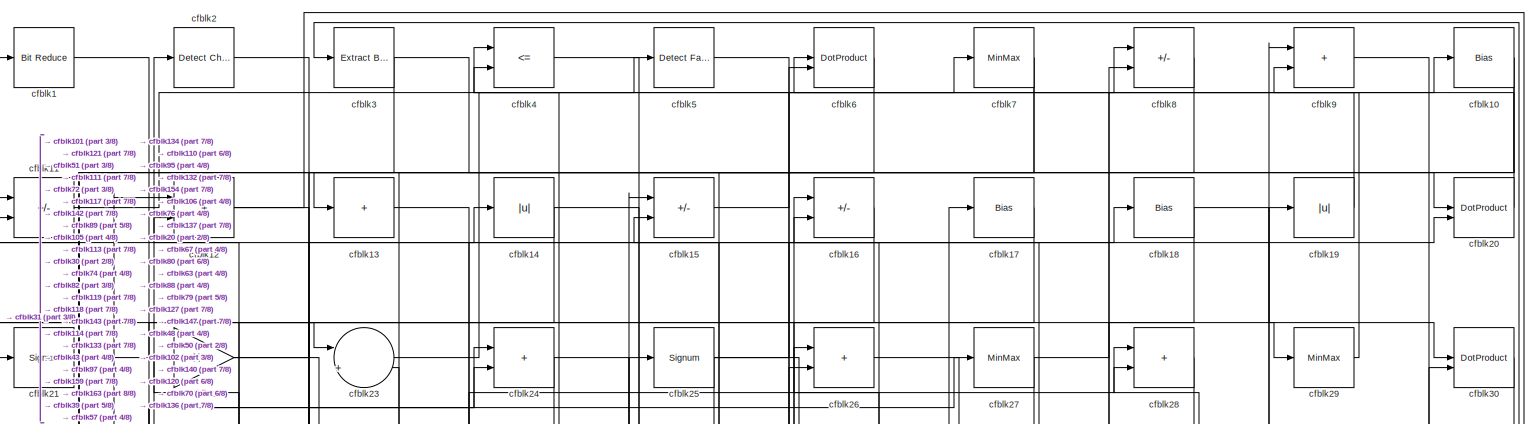
[diagram: root canvas - part 1/8, full width, top band]
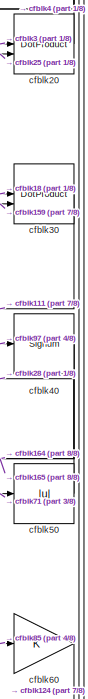
[diagram: root canvas - part 2/8, top right region]
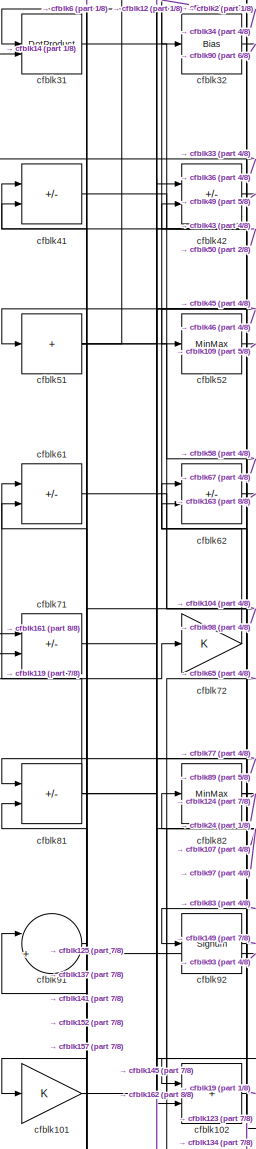
[diagram: root canvas - part 3/8, middle left region]
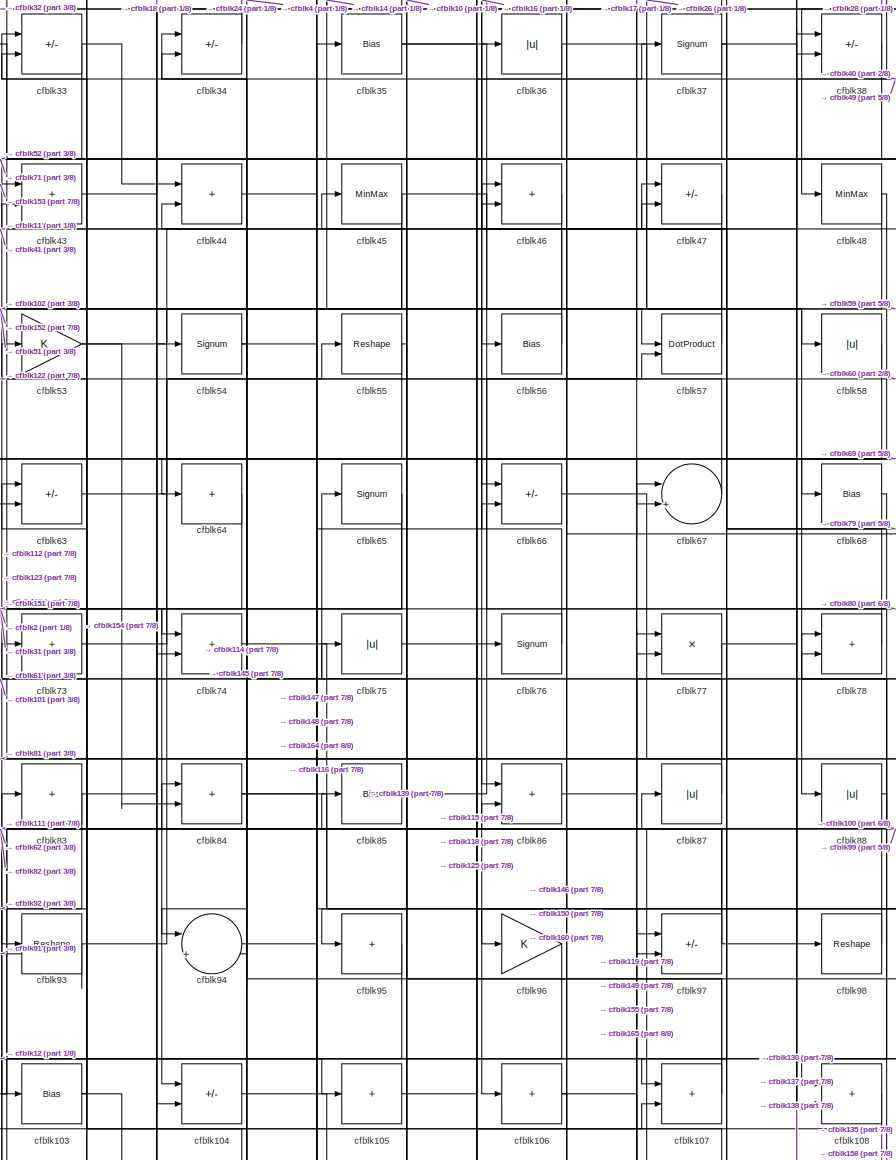
[diagram: root canvas - part 4/8, central region]
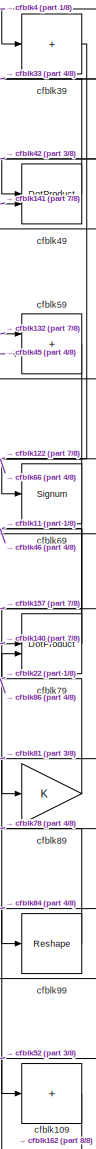
[diagram: root canvas - part 5/8, middle right region]
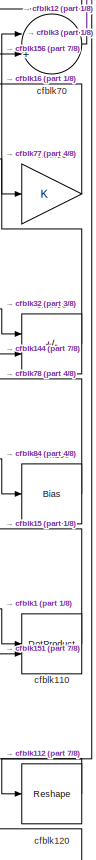
[diagram: root canvas - part 6/8, middle right region]
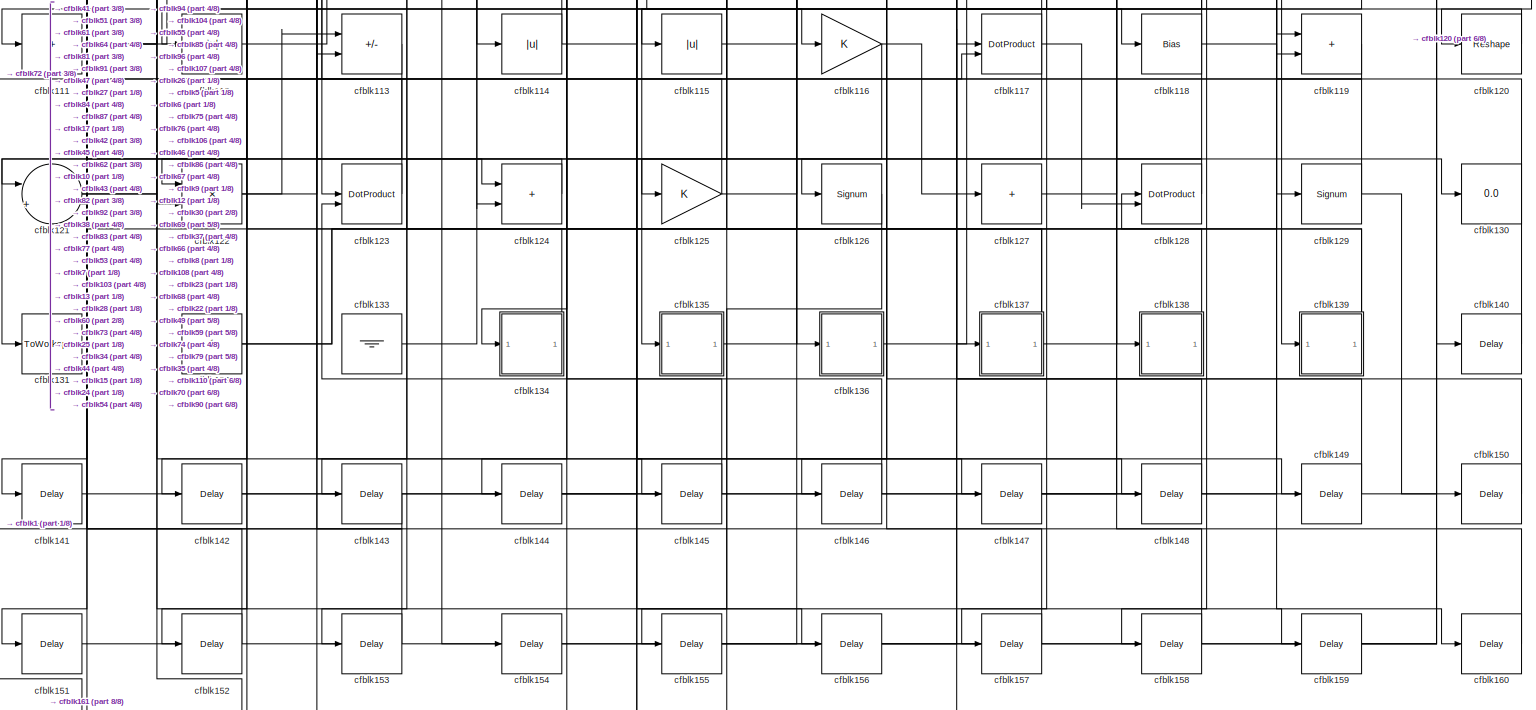
[diagram: root canvas - part 7/8, full width, bottom band]
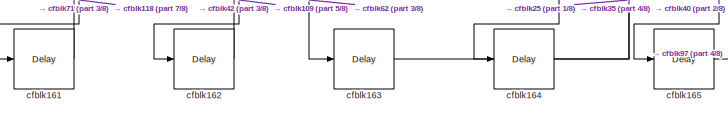
[diagram: root canvas - part 8/8, bottom left region]
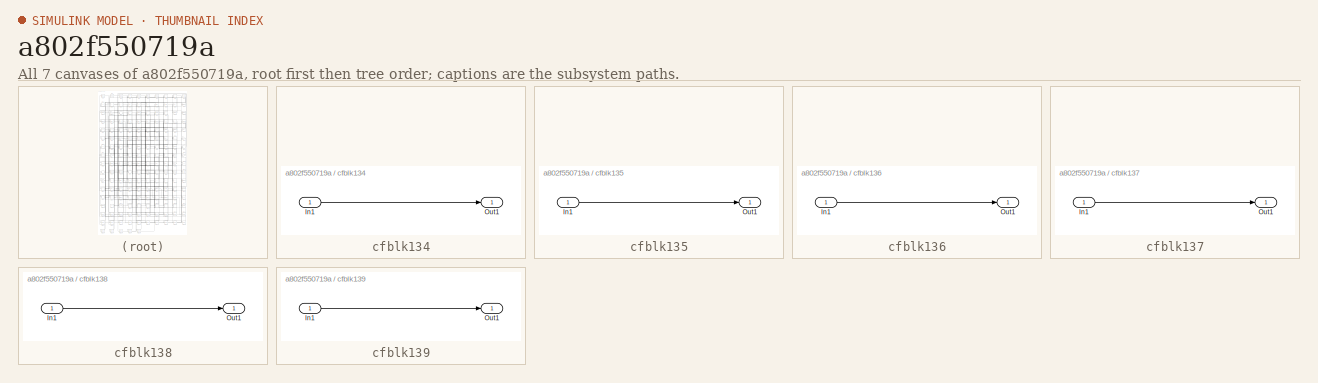
[diagram: thumbnail index - all 7 canvases of the model, root first then tree order]
MODEL slx_a802f550719a
KIND model
CONFIG AbsTol = auto
CONFIG EnableMultiTasking = off
CONFIG FixedStep = auto
CONFIG MaxStep = auto
CONFIG MinStep = auto
CONFIG RelTol = 1e-3
CONFIG SampleTimeConstraint = Unconstrained
CONFIG SolverName = VariableStepAuto
CONFIG StartTime = 0.0
CONFIG StopTime = 10.0
BLOCK [Reference] cfblk1  REF=hdlsllib/Logic and Bit
Operations/Bit Reduce
  SourceBlock = hdlsllib/Logic and Bit\nOperations/Bit Reduce
  SourceType = Bit Reduce
BLOCK [Bias] cfblk10
  Bias = 0.0
  SaturateOnIntegerOverflow = off
BLOCK [Bias] cfblk100
  Bias = 0.0
  SaturateOnIntegerOverflow = off
BLOCK [Gain] cfblk101
BLOCK [Sum] cfblk102
  IconShape = rectangular
BLOCK [Bias] cfblk103
  Bias = 0.0
  SaturateOnIntegerOverflow = off
BLOCK [Sum] cfblk104
  IconShape = rectangular
  Inputs = +-
BLOCK [Sum] cfblk105
  IconShape = rectangular
  Inputs = +
BLOCK [Sum] cfblk106
  IconShape = rectangular
  Inputs = +
BLOCK [Sum] cfblk107
  IconShape = rectangular
BLOCK [Sum] cfblk108
  IconShape = rectangular
BLOCK [Sum] cfblk109
  IconShape = rectangular
  Inputs = +
BLOCK [Sum] cfblk11
  IconShape = rectangular
  Inputs = +-
BLOCK [DotProduct] cfblk110
  OutDataTypeStr = Inherit: Inherit via internal rule
BLOCK [Sum] cfblk111
  IconShape = rectangular
  Inputs = +
BLOCK [Abs] cfblk112
  SaturateOnIntegerOverflow = off
BLOCK [Sum] cfblk113
  IconShape = rectangular
  Inputs = +-
BLOCK [Abs] cfblk114
  SaturateOnIntegerOverflow = off
BLOCK [Abs] cfblk115
  SaturateOnIntegerOverflow = off
BLOCK [Gain] cfblk116
BLOCK [DotProduct] cfblk117
  OutDataTypeStr = Inherit: Inherit via internal rule
BLOCK [Bias] cfblk118
  Bias = 0.0
  SaturateOnIntegerOverflow = off
BLOCK [Sum] cfblk119
  IconShape = rectangular
BLOCK [Sum] cfblk12
  IconShape = rectangular
BLOCK [Reshape] cfblk120
BLOCK [Sum] cfblk121
  Inputs = |++
BLOCK [Product] cfblk122
  Inputs = */
  RndMeth = Zero
  SaturateOnIntegerOverflow = on
BLOCK [DotProduct] cfblk123
  OutDataTypeStr = Inherit: Inherit via internal rule
BLOCK [Sum] cfblk124
  IconShape = rectangular
BLOCK [Gain] cfblk125
BLOCK [Signum] cfblk126
BLOCK [Sum] cfblk127
  IconShape = rectangular
  Inputs = +
BLOCK [DotProduct] cfblk128
  OutDataTypeStr = Inherit: Inherit via internal rule
BLOCK [Signum] cfblk129
BLOCK [Sum] cfblk13
  IconShape = rectangular
  Inputs = +
BLOCK [Display] cfblk130
  Decimation = 1
BLOCK [ToWorkspace] cfblk131
  MaxDataPoints = inf
  SampleTime = -1
  SaveFormat = Timeseries
  VariableName = simout
BLOCK [Constant] cfblk132
  SampleTime = -1
BLOCK [Ground] cfblk133
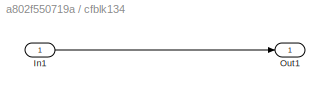
BLOCK [SubSystem] cfblk134
  LibrarySourceBlock = hdlsllib/Ports &\nSubsystems/Subsystem
BLOCK [Inport] cfblk134/In1
BLOCK [Outport] cfblk134/Out1
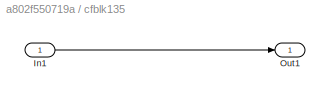
BLOCK [SubSystem] cfblk135
  LibrarySourceBlock = hdlsllib/Ports &\nSubsystems/Subsystem
BLOCK [Inport] cfblk135/In1
BLOCK [Outport] cfblk135/Out1
BLOCK [SubSystem] cfblk136
  LibrarySourceBlock = hdlsllib/Ports &\nSubsystems/Subsystem
BLOCK [Inport] cfblk136/In1
BLOCK [Outport] cfblk136/Out1
BLOCK [SubSystem] cfblk137
  LibrarySourceBlock = hdlsllib/Ports &\nSubsystems/Subsystem
BLOCK [Inport] cfblk137/In1
BLOCK [Outport] cfblk137/Out1
BLOCK [SubSystem] cfblk138
  LibrarySourceBlock = hdlsllib/Ports &\nSubsystems/Subsystem
BLOCK [Inport] cfblk138/In1
BLOCK [Outport] cfblk138/Out1
BLOCK [SubSystem] cfblk139
  LibrarySourceBlock = hdlsllib/Ports &\nSubsystems/Subsystem
BLOCK [Inport] cfblk139/In1
BLOCK [Outport] cfblk139/Out1
BLOCK [Abs] cfblk14
  SaturateOnIntegerOverflow = off
BLOCK [Delay] cfblk140
  InputPortMap = u0
  SampleTime = 1
BLOCK [Delay] cfblk141
  InputPortMap = u0
  SampleTime = 1
BLOCK [Delay] cfblk142
  InputPortMap = u0
  SampleTime = 1
BLOCK [Delay] cfblk143
  InputPortMap = u0
  SampleTime = 1
BLOCK [Delay] cfblk144
  InputPortMap = u0
  SampleTime = 1
BLOCK [Delay] cfblk145
  InputPortMap = u0
  SampleTime = 1
BLOCK [Delay] cfblk146
  InputPortMap = u0
  SampleTime = 1
BLOCK [Delay] cfblk147
  InputPortMap = u0
  SampleTime = 1
BLOCK [Delay] cfblk148
  InputPortMap = u0
  SampleTime = 1
BLOCK [Delay] cfblk149
  InputPortMap = u0
  SampleTime = 1
BLOCK [Sum] cfblk15
  IconShape = rectangular
  Inputs = +-
BLOCK [Delay] cfblk150
  InputPortMap = u0
  SampleTime = 1
BLOCK [Delay] cfblk151
  InputPortMap = u0
  SampleTime = 1
BLOCK [Delay] cfblk152
  InputPortMap = u0
  SampleTime = 1
BLOCK [Delay] cfblk153
  InputPortMap = u0
  SampleTime = 1
BLOCK [Delay] cfblk154
  InputPortMap = u0
  SampleTime = 1
BLOCK [Delay] cfblk155
  InputPortMap = u0
  SampleTime = 1
BLOCK [Delay] cfblk156
  InputPortMap = u0
  SampleTime = 1
BLOCK [Delay] cfblk157
  InputPortMap = u0
  SampleTime = 1
BLOCK [Delay] cfblk158
  InputPortMap = u0
  SampleTime = 1
BLOCK [Delay] cfblk159
  InputPortMap = u0
  SampleTime = 1
BLOCK [Sum] cfblk16
  IconShape = rectangular
  Inputs = +-
BLOCK [Delay] cfblk160
  InputPortMap = u0
  SampleTime = 1
BLOCK [Delay] cfblk161
  InputPortMap = u0
  SampleTime = 1
BLOCK [Delay] cfblk162
  InputPortMap = u0
  SampleTime = 1
BLOCK [Delay] cfblk163
  InputPortMap = u0
  SampleTime = 1
BLOCK [Delay] cfblk164
  InputPortMap = u0
  SampleTime = 1
BLOCK [Delay] cfblk165
  InputPortMap = u0
  SampleTime = 1
BLOCK [Bias] cfblk17
  Bias = 0.0
  SaturateOnIntegerOverflow = off
BLOCK [Bias] cfblk18
  Bias = 0.0
  SaturateOnIntegerOverflow = off
BLOCK [Abs] cfblk19
  SaturateOnIntegerOverflow = off
BLOCK [Reference] cfblk2  REF=simulink/Logic and Bit
Operations/Detect
Change
  LibrarySourceBlock = hdlsllib/Logic and Bit\nOperations/Detect\nChange
  SourceBlock = simulink/Logic and Bit\nOperations/Detect\nChange
  SourceType = Detect Change
BLOCK [DotProduct] cfblk20
  OutDataTypeStr = Inherit: Inherit via internal rule
BLOCK [Signum] cfblk21
BLOCK [Gain] cfblk22
BLOCK [Sum] cfblk23
  Inputs = |++
BLOCK [Sum] cfblk24
  IconShape = rectangular
BLOCK [Signum] cfblk25
BLOCK [Sum] cfblk26
  IconShape = rectangular
BLOCK [MinMax] cfblk27
BLOCK [Sum] cfblk28
  IconShape = rectangular
BLOCK [MinMax] cfblk29
BLOCK [Reference] cfblk3  REF=simulink/Logic and Bit
Operations/Extract Bits
  LibrarySourceBlock = hdlsllib/Logic and Bit\nOperations/Extract Bits
  SourceBlock = simulink/Logic and Bit\nOperations/Extract Bits
  SourceType = Extract Bits
BLOCK [DotProduct] cfblk30
  OutDataTypeStr = Inherit: Inherit via internal rule
BLOCK [DotProduct] cfblk31
  OutDataTypeStr = Inherit: Inherit via internal rule
BLOCK [Bias] cfblk32
  Bias = 0.0
  SaturateOnIntegerOverflow = off
BLOCK [Sum] cfblk33
  IconShape = rectangular
  Inputs = +-
BLOCK [Sum] cfblk34
  IconShape = rectangular
  Inputs = +-
BLOCK [Bias] cfblk35
  Bias = 0.0
  SaturateOnIntegerOverflow = off
BLOCK [Abs] cfblk36
  SaturateOnIntegerOverflow = off
BLOCK [Signum] cfblk37
BLOCK [Sum] cfblk38
  IconShape = rectangular
  Inputs = +-
BLOCK [Sum] cfblk39
  IconShape = rectangular
  Inputs = +
BLOCK [RelationalOperator] cfblk4
  InputSameDT = off
  Operator = <=
  OutDataTypeStr = boolean
BLOCK [Signum] cfblk40
BLOCK [Sum] cfblk41
  IconShape = rectangular
  Inputs = +-
BLOCK [Sum] cfblk42
  IconShape = rectangular
  Inputs = +-
BLOCK [Sum] cfblk43
  IconShape = rectangular
BLOCK [Sum] cfblk44
  IconShape = rectangular
BLOCK [MinMax] cfblk45
BLOCK [Sum] cfblk46
  IconShape = rectangular
BLOCK [Sum] cfblk47
  IconShape = rectangular
  Inputs = +-
BLOCK [MinMax] cfblk48
BLOCK [DotProduct] cfblk49
  OutDataTypeStr = Inherit: Inherit via internal rule
BLOCK [Reference] cfblk5  REF=hdlsllib/Logic and Bit
Operations/Detect Fall
Negative
  SourceBlock = hdlsllib/Logic and Bit\nOperations/Detect Fall\nNegative
  SourceType = Detect Fall Negative
BLOCK [Abs] cfblk50
  SaturateOnIntegerOverflow = off
BLOCK [Sum] cfblk51
  IconShape = rectangular
  Inputs = +
BLOCK [MinMax] cfblk52
BLOCK [Gain] cfblk53
BLOCK [Signum] cfblk54
BLOCK [Reshape] cfblk55
BLOCK [Bias] cfblk56
  Bias = 0.0
  SaturateOnIntegerOverflow = off
BLOCK [DotProduct] cfblk57
  OutDataTypeStr = Inherit: Inherit via internal rule
BLOCK [Abs] cfblk58
  SaturateOnIntegerOverflow = off
BLOCK [Sum] cfblk59
  IconShape = rectangular
BLOCK [DotProduct] cfblk6
  OutDataTypeStr = Inherit: Inherit via internal rule
BLOCK [Gain] cfblk60
BLOCK [Sum] cfblk61
  IconShape = rectangular
  Inputs = +-
BLOCK [Sum] cfblk62
  IconShape = rectangular
  Inputs = +-
BLOCK [Sum] cfblk63
  IconShape = rectangular
  Inputs = +-
BLOCK [Sum] cfblk64
  IconShape = rectangular
  Inputs = +
BLOCK [Signum] cfblk65
BLOCK [Sum] cfblk66
  IconShape = rectangular
  Inputs = +-
BLOCK [Sum] cfblk67
  Inputs = |++
BLOCK [Bias] cfblk68
  Bias = 0.0
  SaturateOnIntegerOverflow = off
BLOCK [Signum] cfblk69
BLOCK [MinMax] cfblk7
BLOCK [Sum] cfblk70
  Inputs = |++
BLOCK [Sum] cfblk71
  IconShape = rectangular
  Inputs = +-
BLOCK [Gain] cfblk72
BLOCK [Sum] cfblk73
  IconShape = rectangular
  Inputs = +
BLOCK [Sum] cfblk74
  IconShape = rectangular
BLOCK [Abs] cfblk75
  SaturateOnIntegerOverflow = off
BLOCK [Signum] cfblk76
BLOCK [Product] cfblk77
  Inputs = */
  RndMeth = Zero
  SaturateOnIntegerOverflow = on
BLOCK [Sum] cfblk78
  IconShape = rectangular
BLOCK [DotProduct] cfblk79
  OutDataTypeStr = Inherit: Inherit via internal rule
BLOCK [Sum] cfblk8
  IconShape = rectangular
  Inputs = +-
BLOCK [Gain] cfblk80
BLOCK [Sum] cfblk81
  IconShape = rectangular
  Inputs = +-
BLOCK [MinMax] cfblk82
BLOCK [Sum] cfblk83
  IconShape = rectangular
  Inputs = +
BLOCK [Sum] cfblk84
  IconShape = rectangular
BLOCK [Bias] cfblk85
  Bias = 0.0
  SaturateOnIntegerOverflow = off
BLOCK [Sum] cfblk86
  IconShape = rectangular
BLOCK [Abs] cfblk87
  SaturateOnIntegerOverflow = off
BLOCK [Abs] cfblk88
  SaturateOnIntegerOverflow = off
BLOCK [Gain] cfblk89
BLOCK [Sum] cfblk9
  IconShape = rectangular
BLOCK [Sum] cfblk90
  IconShape = rectangular
  Inputs = +-
BLOCK [Sum] cfblk91
  Inputs = |++
BLOCK [Signum] cfblk92
BLOCK [Reshape] cfblk93
BLOCK [Sum] cfblk94
  Inputs = |++
BLOCK [Sum] cfblk95
  IconShape = rectangular
  Inputs = +
BLOCK [Gain] cfblk96
BLOCK [Sum] cfblk97
  IconShape = rectangular
  Inputs = +-
BLOCK [Reshape] cfblk98
BLOCK [Reshape] cfblk99
LINE cfblk100:1 -> cfblk78:1
LINE cfblk101:1 -> cfblk65:1
LINE cfblk102:1 -> cfblk19:1
NET cfblk103:1 -> cfblk154:1, cfblk63:1
LINE cfblk104:1 -> cfblk116:1
LINE cfblk105:1 -> cfblk47:1
NET cfblk106:1 -> cfblk119:2, cfblk146:1
NET cfblk107:1 -> cfblk75:1, cfblk82:1
LINE cfblk108:1 -> cfblk135:1
LINE cfblk109:1 -> cfblk162:1
NET cfblk10:1 -> cfblk113:2, cfblk95:1
LINE cfblk110:1 -> cfblk15:2
NET cfblk111:1 -> cfblk27:1, cfblk84:1, cfblk87:1
LINE cfblk112:1 -> cfblk77:2
LINE cfblk113:1 -> cfblk131:1
NET cfblk114:1 -> cfblk66:2, cfblk73:1
LINE cfblk115:1 -> cfblk76:1
NET cfblk116:1 -> cfblk127:1, cfblk153:1
NET cfblk117:1 -> cfblk128:2, cfblk12:2, cfblk144:1
NET cfblk118:1 -> cfblk160:1, cfblk161:1, cfblk23:2
LINE cfblk119:1 -> cfblk72:1
LINE cfblk11:1 -> cfblk5:1
LINE cfblk120:1 -> cfblk112:1
NET cfblk121:1 -> cfblk117:2, cfblk156:1
NET cfblk122:1 -> cfblk113:1, cfblk55:1
LINE cfblk123:1 -> cfblk42:2
LINE cfblk124:1 -> cfblk121:1
NET cfblk125:1 -> cfblk107:2, cfblk81:2
LINE cfblk126:1 -> cfblk155:1
LINE cfblk127:1 -> cfblk10:1
LINE cfblk128:1 -> cfblk126:1
NET cfblk129:1 -> cfblk150:1, cfblk83:1
NET cfblk12:1 -> cfblk105:1, cfblk120:1
NET cfblk132:1 -> cfblk59:1, cfblk6:2
LINE cfblk133:1 -> cfblk28:1
LINE cfblk134/In1:1 -> cfblk134/Out1:1
LINE cfblk134:1 -> cfblk62:1
LINE cfblk135/In1:1 -> cfblk135/Out1:1
LINE cfblk135:1 -> cfblk37:1
LINE cfblk136/In1:1 -> cfblk136/Out1:1
LINE cfblk136:1 -> cfblk9:1
LINE cfblk137/In1:1 -> cfblk137/Out1:1
NET cfblk137:1 -> cfblk108:2, cfblk34:2, cfblk61:2
LINE cfblk138/In1:1 -> cfblk138/Out1:1
LINE cfblk138:1 -> cfblk53:1
LINE cfblk139/In1:1 -> cfblk139/Out1:1
NET cfblk139:1 -> cfblk128:1, cfblk85:1
LINE cfblk13:1 -> cfblk114:1
LINE cfblk140:1 -> cfblk79:1
LINE cfblk141:1 -> cfblk49:2
LINE cfblk142:1 -> cfblk15:1
LINE cfblk143:1 -> cfblk1:1
LINE cfblk144:1 -> cfblk90:2
LINE cfblk145:1 -> cfblk44:2
LINE cfblk146:1 -> cfblk123:2
LINE cfblk147:1 -> cfblk8:2
LINE cfblk148:1 -> cfblk117:1
LINE cfblk149:1 -> cfblk77:1
NET cfblk14:1 -> cfblk31:2, cfblk57:1
LINE cfblk150:1 -> cfblk46:2
LINE cfblk151:1 -> cfblk110:2
LINE cfblk152:1 -> cfblk91:1
LINE cfblk153:1 -> cfblk43:1
LINE cfblk154:1 -> cfblk26:2
LINE cfblk155:1 -> cfblk67:1
LINE cfblk156:1 -> cfblk70:2
LINE cfblk157:1 -> cfblk41:2
LINE cfblk158:1 -> cfblk38:1
LINE cfblk159:1 -> cfblk30:2
LINE cfblk15:1 -> cfblk8:1
LINE cfblk160:1 -> cfblk86:2
LINE cfblk161:1 -> cfblk71:1
LINE cfblk162:1 -> cfblk42:1
LINE cfblk163:1 -> cfblk25:1
LINE cfblk164:1 -> cfblk35:1
LINE cfblk165:1 -> cfblk97:1
LINE cfblk16:1 -> cfblk106:1
LINE cfblk17:1 -> cfblk142:1
NET cfblk18:1 -> cfblk30:1, cfblk63:2
LINE cfblk19:1 -> cfblk6:1
LINE cfblk1:1 -> cfblk110:1
LINE cfblk20:1 -> cfblk4:1
LINE cfblk21:1 -> cfblk23:1
NET cfblk22:1 -> cfblk119:1, cfblk14:1
LINE cfblk23:1 -> cfblk7:1
NET cfblk24:1 -> cfblk159:1, cfblk74:2
NET cfblk25:1 -> cfblk134:1, cfblk137:1, cfblk20:2
LINE cfblk26:1 -> cfblk88:1
NET cfblk27:1 -> cfblk29:1, cfblk31:1
LINE cfblk28:1 -> cfblk48:1
LINE cfblk29:1 -> cfblk9:2
LINE cfblk2:1 -> cfblk74:1
LINE cfblk30:1 -> cfblk111:1
LINE cfblk31:1 -> cfblk104:2
LINE cfblk32:1 -> cfblk90:1
NET cfblk33:1 -> cfblk44:1, cfblk52:1
LINE cfblk34:1 -> cfblk32:1
NET cfblk35:1 -> cfblk139:1, cfblk97:2
NET cfblk36:1 -> cfblk58:1, cfblk71:2
NET cfblk37:1 -> cfblk107:1, cfblk130:1, cfblk93:1
LINE cfblk38:1 -> cfblk123:1
LINE cfblk39:1 -> cfblk69:1
NET cfblk3:1 -> cfblk20:1, cfblk21:1
NET cfblk40:1 -> cfblk164:1, cfblk165:1
LINE cfblk41:1 -> cfblk43:2
LINE cfblk42:1 -> cfblk49:1
LINE cfblk43:1 -> cfblk18:1
LINE cfblk44:1 -> cfblk86:1
NET cfblk45:1 -> cfblk102:2, cfblk152:1, cfblk59:2
LINE cfblk46:1 -> cfblk51:1
LINE cfblk47:1 -> cfblk122:2
NET cfblk48:1 -> cfblk68:1, cfblk96:1
LINE cfblk49:1 -> cfblk33:1
LINE cfblk4:1 -> cfblk39:1
LINE cfblk50:1 -> cfblk28:2
NET cfblk51:1 -> cfblk12:1, cfblk141:1, cfblk24:2, cfblk67:2
LINE cfblk52:1 -> cfblk109:1
NET cfblk53:1 -> cfblk56:1, cfblk84:2
NET cfblk54:1 -> cfblk147:1, cfblk94:1
NET cfblk55:1 -> cfblk115:1, cfblk64:1
LINE cfblk56:1 -> cfblk36:1
LINE cfblk57:1 -> cfblk11:1
LINE cfblk58:1 -> cfblk102:1
LINE cfblk59:1 -> cfblk122:1
LINE cfblk5:1 -> cfblk136:1
LINE cfblk60:1 -> cfblk124:2
LINE cfblk61:1 -> cfblk98:1
LINE cfblk62:1 -> cfblk163:1
LINE cfblk63:1 -> cfblk17:1
LINE cfblk64:1 -> cfblk151:1
NET cfblk65:1 -> cfblk104:1, cfblk94:2
LINE cfblk66:1 -> cfblk138:1
LINE cfblk67:1 -> cfblk26:1
LINE cfblk68:1 -> cfblk158:1
NET cfblk69:1 -> cfblk157:1, cfblk66:1
LINE cfblk6:1 -> cfblk101:1
LINE cfblk70:1 -> cfblk3:1
LINE cfblk71:1 -> cfblk50:1
LINE cfblk72:1 -> cfblk2:1
LINE cfblk73:1 -> cfblk38:2
LINE cfblk74:1 -> cfblk129:1
LINE cfblk75:1 -> cfblk118:1
LINE cfblk76:1 -> cfblk16:1
NET cfblk77:1 -> cfblk80:1, cfblk81:1
LINE cfblk78:1 -> cfblk47:2
NET cfblk79:1 -> cfblk11:2, cfblk46:1
NET cfblk7:1 -> cfblk121:2, cfblk143:1
LINE cfblk80:1 -> cfblk16:2
NET cfblk81:1 -> cfblk145:1, cfblk61:1, cfblk89:1
NET cfblk82:1 -> cfblk124:1, cfblk24:1
NET cfblk83:1 -> cfblk54:1, cfblk92:1
NET cfblk84:1 -> cfblk100:1, cfblk99:1
LINE cfblk85:1 -> cfblk60:1
LINE cfblk86:1 -> cfblk79:2
LINE cfblk87:1 -> cfblk34:1
LINE cfblk88:1 -> cfblk108:1
LINE cfblk89:1 -> cfblk22:1
LINE cfblk8:1 -> cfblk13:1
LINE cfblk90:1 -> cfblk70:1
LINE cfblk91:1 -> cfblk41:1
LINE cfblk92:1 -> cfblk149:1
NET cfblk93:1 -> cfblk57:2, cfblk91:2
LINE cfblk94:1 -> cfblk148:1
LINE cfblk95:1 -> cfblk103:1
LINE cfblk96:1 -> cfblk125:1
NET cfblk97:1 -> cfblk33:2, cfblk40:1, cfblk4:2, cfblk62:2
LINE cfblk98:1 -> cfblk45:1
LINE cfblk99:1 -> cfblk78:2
LINE cfblk9:1 -> cfblk140:1
note: NET lines group one-source signal fan-out (src -> all destinations, sorted); 1:1 wires keep LINE
